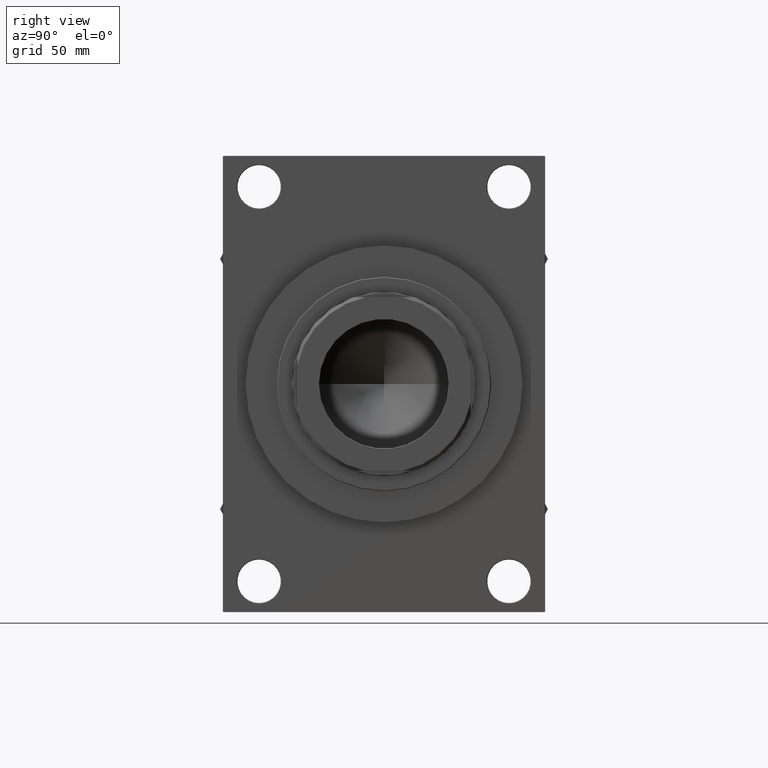
[diagram: clean part render]
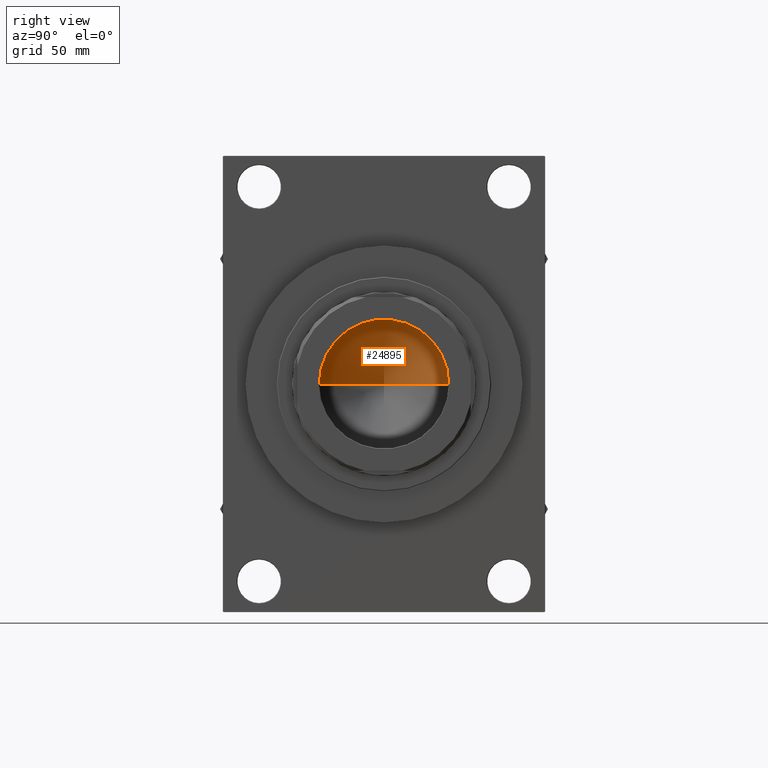
[diagram: same view with one face highlighted and labeled with its STEP entity id]
A machine part, right view. The second image highlights one B-rep face of the part: STEP entity #24895.
In plain terms, the highlighted conical surface has half-angle 59 deg.
Its self-contained STEP definition (entity closure, byte-faithful):
#506 = CARTESIAN_POINT ( 'NONE',  ( -49.24999999999997868, 6.031385485800712357E-15, 128.0000000000000000 ) ) ;
#1676 = CARTESIAN_POINT ( 'NONE',  ( 49.24999999999997868, 0.000000000000000000, 128.0000000000000000 ) ) ;
#3651 = DIRECTION ( 'NONE',  ( -0.000000000000000000, -0.000000000000000000, 1.000000000000000000 ) ) ;
#6263 = DIRECTION ( 'NONE',  ( 1.000000000000000000, 0.000000000000000000, 0.000000000000000000 ) ) ;
#7612 = CARTESIAN_POINT ( 'NONE',  ( 0.000000000000000000, 0.000000000000000000, 128.0000000000000000 ) ) ;
#8152 = VECTOR ( 'NONE', #34103, 1000.000000000000000 ) ;
#8453 = EDGE_LOOP ( 'NONE', ( #21768, #18084, #26515 ) ) ;
#10069 = AXIS2_PLACEMENT_3D ( 'NONE', #36775, #3651, #37482 ) ;
#10634 = AXIS2_PLACEMENT_3D ( 'NONE', #7612, #14635, #6263 ) ;
#10915 = FACE_OUTER_BOUND ( 'NONE', #8453, .T. ) ;
#12362 = CONICAL_SURFACE ( 'NONE', #10069, 49.24999999999997868, 1.029744258676653423 ) ;
#12764 = VERTEX_POINT ( 'NONE', #29546 ) ;
#14635 = DIRECTION ( 'NONE',  ( -0.000000000000000000, -0.000000000000000000, 1.000000000000000000 ) ) ;
#15141 = EDGE_CURVE ( 'NONE', #12764, #22934, #16184, .T. ) ;
#15167 = EDGE_CURVE ( 'NONE', #19177, #22934, #20690, .T. ) ;
#16184 = LINE ( 'NONE', #1676, #33790 ) ;
#18084 = ORIENTED_EDGE ( 'NONE', *, *, #39579, .T. ) ;
#18886 = LINE ( 'NONE', #506, #8152 ) ;
#19177 = VERTEX_POINT ( 'NONE', #25211 ) ;
#20690 = CIRCLE ( 'NONE', #10634, 49.24999999999997868 ) ;
#21768 = ORIENTED_EDGE ( 'NONE', *, *, #15141, .F. ) ;
#22934 = VERTEX_POINT ( 'NONE', #44529 ) ;
#24895 = ADVANCED_FACE ( 'NONE', ( #10915 ), #12362, .F. ) ;
#25211 = CARTESIAN_POINT ( 'NONE',  ( -49.24999999999997868, 6.031385485800712357E-15, 128.0000000000000000 ) ) ;
#26515 = ORIENTED_EDGE ( 'NONE', *, *, #15167, .T. ) ;
#29546 = CARTESIAN_POINT ( 'NONE',  ( -3.318838890392715616E-14, 0.000000000000000000, 98.40761451289262141 ) ) ;
#30461 = DIRECTION ( 'NONE',  ( 0.8571673007021117785, 0.000000000000000000, 0.5150380749100550437 ) ) ;
#33790 = VECTOR ( 'NONE', #30461, 1000.000000000000000 ) ;
#34103 = DIRECTION ( 'NONE',  ( -0.8571673007021117785, 1.049727191138617956E-16, 0.5150380749100550437 ) ) ;
#36775 = CARTESIAN_POINT ( 'NONE',  ( 0.000000000000000000, 0.000000000000000000, 128.0000000000000000 ) ) ;
#37482 = DIRECTION ( 'NONE',  ( 1.000000000000000000, 0.000000000000000000, 0.000000000000000000 ) ) ;
#39579 = EDGE_CURVE ( 'NONE', #12764, #19177, #18886, .T. ) ;
#44529 = CARTESIAN_POINT ( 'NONE',  ( 49.24999999999997868, 0.000000000000000000, 128.0000000000000000 ) ) ;